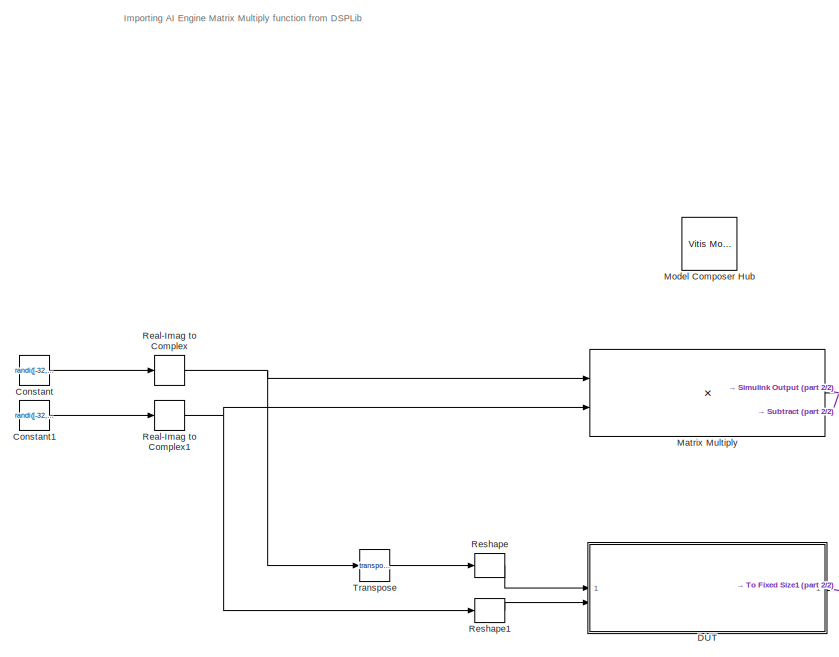
[diagram: root canvas - part 1/2, left side, full height]
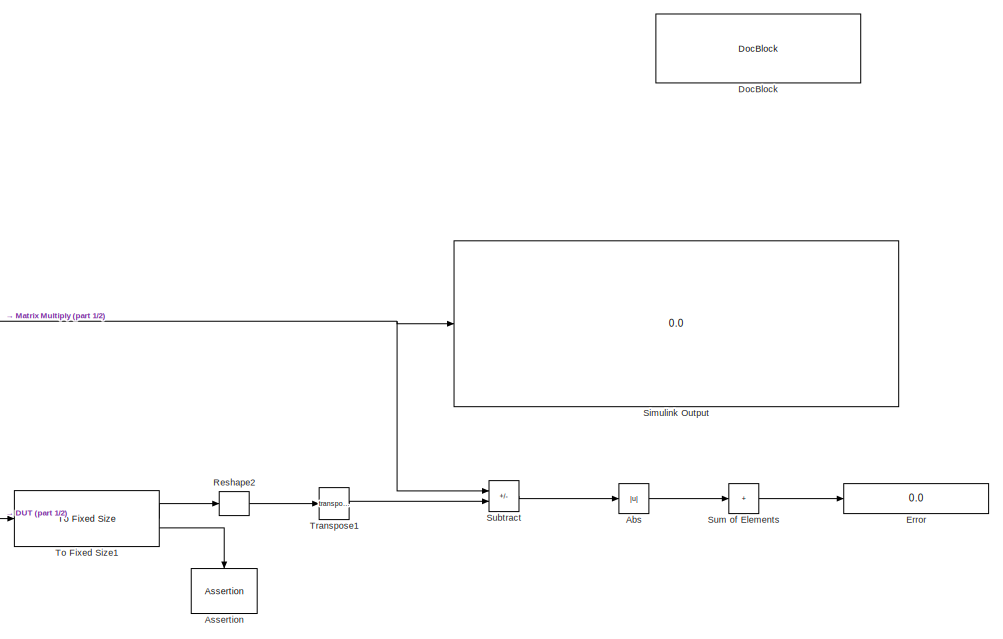
[diagram: root canvas - part 2/2, right side, full height]
MODEL slx_7ee3898e37ff
KIND model
CONFIG AbsTol = auto
CONFIG EnableMultiTasking = on
CONFIG FixedStep = auto
CONFIG InitFcn = setenv("DSPLIB_ROOT",xmcLibraryPath('get','dsplib'))
CONFIG MaxStep = auto
CONFIG MinStep = auto
CONFIG PostLoadFcn = setenv("DSPLIB_ROOT",xmcLibraryPath('get','dsplib'))
CONFIG RelTol = 1e-3
CONFIG SampleTimeConstraint = Unconstrained
CONFIG SolverName = VariableStepAuto
CONFIG StartTime = 0.0
CONFIG StopTime = 0
BLOCK [Abs] Abs
  SaturateOnIntegerOverflow = off
BLOCK [Assertion] Assertion
  NameLocation = left
BLOCK [Constant] Constant
  OutDataTypeStr = int16
  SampleTime = 1
  Value = randi([-32,32],8,16)
BLOCK [Constant] Constant1
  OutDataTypeStr = int16
  SampleTime = 1
  Value = randi([-32,32],16,24)
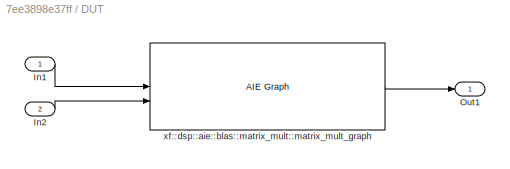
BLOCK [SubSystem] DUT
BLOCK [Inport] DUT/In1
BLOCK [Inport] DUT/In2
  Port = 2
BLOCK [Outport] DUT/Out1
BLOCK [Reference] DUT/xf::dsp::aie::blas::matrix_mult::matrix_mult_graph  REF=aieBasic/AIE Graph
  SourceBlock = aieBasic/AIE Graph
  SourceType = AIE Graph Function
BLOCK [Reference] DocBlock  REF=simulink/Model-Wide
Utilities/DocBlock
  SourceBlock = simulink/Model-Wide\nUtilities/DocBlock
  SourceType = DocBlock
  UserDataPersistent = on
BLOCK [Display] Error
  Decimation = 1
BLOCK [Product] Matrix Multiply
  Multiplication = Matrix(*)
BLOCK [Reference] Model Composer Hub  REF=vmcUtilities/Vitis Model Composer Hub
  Description = Performs multiplication
  SourceBlock = vmcUtilities/Vitis Model Composer Hub
  SourceType = VMC Hub
  Tag = genX
  UserDataPersistent = on
BLOCK [RealImagToComplex] Real-Imag to Complex
  Input = Real
BLOCK [RealImagToComplex] Real-Imag to Complex1
  Input = Real
BLOCK [Reshape] Reshape
BLOCK [Reshape] Reshape1
BLOCK [Reshape] Reshape2
  OutputDimensionality = Customize
  OutputDimensions = [24,8]
BLOCK [Display] Simulink Output
  Decimation = 1
BLOCK [Sum] Subtract
  IconShape = rectangular
  Inputs = +-
  OutDataTypeStr = double
BLOCK [Sum] Sum of Elements
  IconShape = rectangular
  Inputs = +
BLOCK [Reference] To Fixed Size1  REF=aieUtilities/To Fixed Size
  SourceBlock = aieUtilities/To Fixed Size
  SourceType = To Fixed Size
BLOCK [Math] Transpose
  Operator = transpose
BLOCK [Math] Transpose1
  Operator = transpose
ANNOTATION (root): Importing AI Engine Matrix Multiply function from DSPLib
LINE Abs:1 -> Sum of Elements:1
LINE Constant1:1 -> Real-Imag to Complex1:1
LINE Constant:1 -> Real-Imag to Complex:1
LINE DUT/In1:1 -> DUT/xf::dsp::aie::blas::matrix_mult::matrix_mult_graph:1
LINE DUT/In2:1 -> DUT/xf::dsp::aie::blas::matrix_mult::matrix_mult_graph:2
LINE DUT/xf::dsp::aie::blas::matrix_mult::matrix_mult_graph:1 -> DUT/Out1:1
LINE DUT:1 -> To Fixed Size1:1
NET Matrix Multiply:1 -> Simulink Output:1, Subtract:1
NET Real-Imag to Complex1:1 -> Matrix Multiply:2, Reshape1:1
NET Real-Imag to Complex:1 -> Matrix Multiply:1, Transpose:1
LINE Reshape1:1 -> DUT:2
LINE Reshape2:1 -> Transpose1:1
LINE Reshape:1 -> DUT:1
LINE Subtract:1 -> Abs:1
LINE Sum of Elements:1 -> Error:1
LINE To Fixed Size1:1 -> Reshape2:1
LINE To Fixed Size1:2 -> Assertion:1
LINE Transpose1:1 -> Subtract:2
LINE Transpose:1 -> Reshape:1
note: NET lines group one-source signal fan-out (src -> all destinations, sorted); 1:1 wires keep LINE
